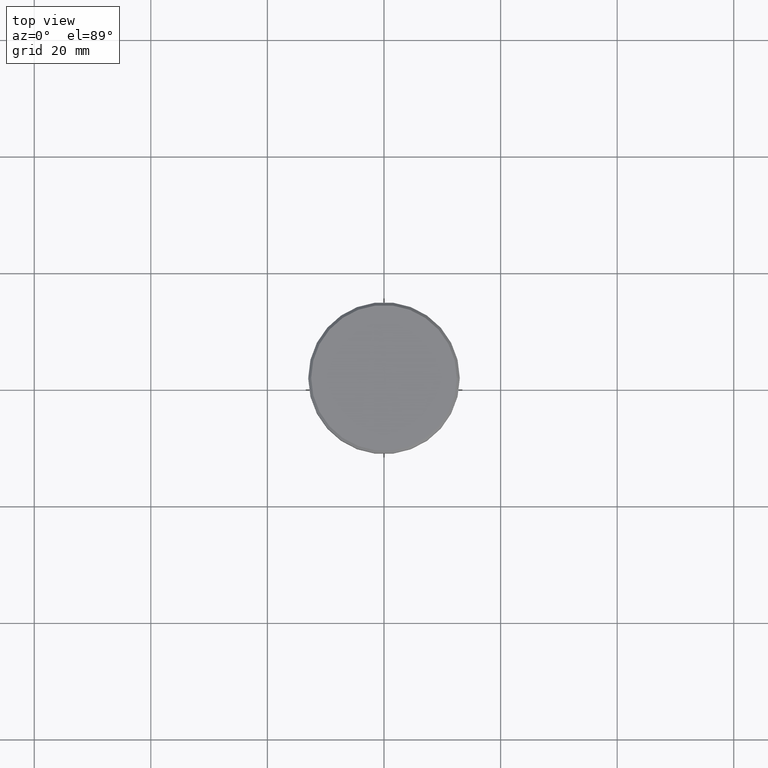
[diagram: clean part render]
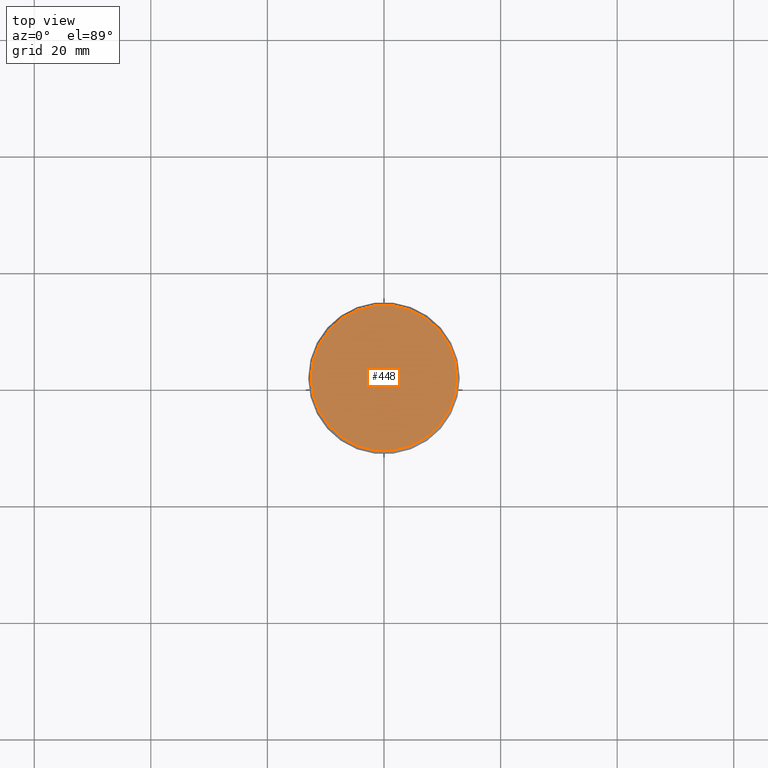
[diagram: same view with one face highlighted and labeled with its STEP entity id]
A machine part, top view. The second image highlights one B-rep face of the part: STEP entity #448.
In plain terms, the highlighted planar face has unit normal (0, -0, 1).
Its self-contained STEP definition (entity closure, byte-faithful):
#154 = PLANE ( 'NONE',  #281 ) ;
#172 = DIRECTION ( 'NONE',  ( -0.000000000000000000, -0.000000000000000000, 1.000000000000000000 ) ) ;
#235 = ORIENTED_EDGE ( 'NONE', *, *, #717, .T. ) ;
#281 = AXIS2_PLACEMENT_3D ( 'NONE', #426, #432, #1114 ) ;
#289 = CARTESIAN_POINT ( 'NONE',  ( 12.49999999999999645, 1.561424668912875111E-15, 0.000000000000000000 ) ) ;
#411 = ORIENTED_EDGE ( 'NONE', *, *, #657, .T. ) ;
#426 = CARTESIAN_POINT ( 'NONE',  ( 0.000000000000000000, 0.000000000000000000, 0.000000000000000000 ) ) ;
#432 = DIRECTION ( 'NONE',  ( 0.000000000000000000, -0.000000000000000000, 1.000000000000000000 ) ) ;
#433 = CARTESIAN_POINT ( 'NONE',  ( -12.49999999999999645, 0.000000000000000000, 0.000000000000000000 ) ) ;
#448 = ADVANCED_FACE ( 'NONE', ( #969 ), #154, .T. ) ;
#461 = AXIS2_PLACEMENT_3D ( 'NONE', #624, #172, #1159 ) ;
#463 = AXIS2_PLACEMENT_3D ( 'NONE', #1154, #650, #660 ) ;
#624 = CARTESIAN_POINT ( 'NONE',  ( 0.000000000000000000, 0.000000000000000000, 0.000000000000000000 ) ) ;
#650 = DIRECTION ( 'NONE',  ( -0.000000000000000000, -0.000000000000000000, 1.000000000000000000 ) ) ;
#657 = EDGE_CURVE ( 'NONE', #1077, #1045, #809, .T. ) ;
#660 = DIRECTION ( 'NONE',  ( 1.000000000000000000, 0.000000000000000000, 0.000000000000000000 ) ) ;
#717 = EDGE_CURVE ( 'NONE', #1045, #1077, #741, .T. ) ;
#741 = CIRCLE ( 'NONE', #461, 12.49999999999999645 ) ;
#809 = CIRCLE ( 'NONE', #463, 12.49999999999999645 ) ;
#898 = EDGE_LOOP ( 'NONE', ( #235, #411 ) ) ;
#969 = FACE_OUTER_BOUND ( 'NONE', #898, .T. ) ;
#1045 = VERTEX_POINT ( 'NONE', #433 ) ;
#1077 = VERTEX_POINT ( 'NONE', #289 ) ;
#1114 = DIRECTION ( 'NONE',  ( 1.000000000000000000, 0.000000000000000000, 0.000000000000000000 ) ) ;
#1154 = CARTESIAN_POINT ( 'NONE',  ( 0.000000000000000000, 0.000000000000000000, 0.000000000000000000 ) ) ;
#1159 = DIRECTION ( 'NONE',  ( 1.000000000000000000, 0.000000000000000000, 0.000000000000000000 ) ) ;